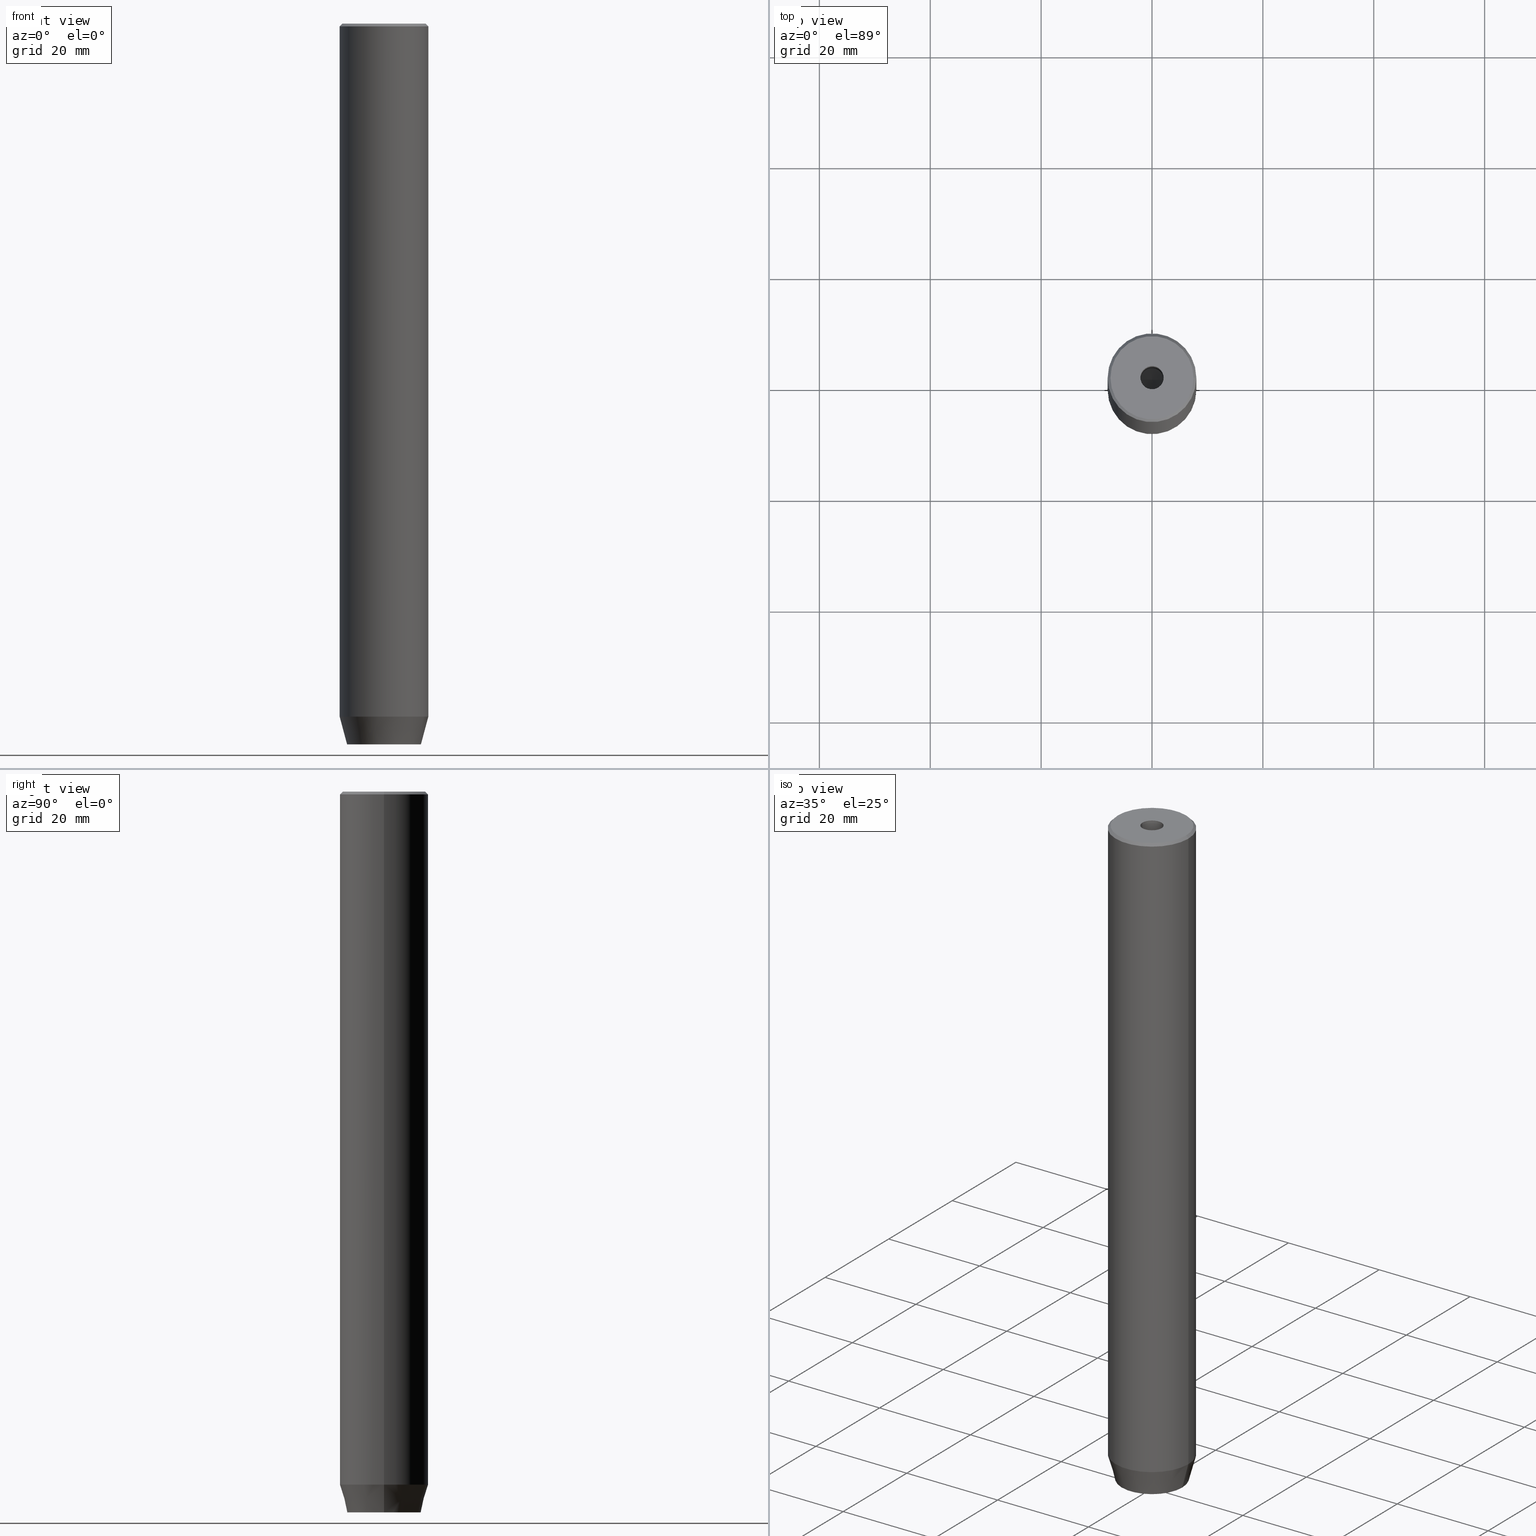
[diagram: canonical four-view strip — front | top / right | iso, engineering-drawing reading convention]
A machine part, canonical four-view strip (front | top / right | iso — engineering-drawing reading convention). The complete STEP part file that produces these views, byte-faithful:
ISO-10303-21;
HEADER;
FILE_DESCRIPTION (( 'STEP AP203' ),
    '1' );
FILE_NAME ('1d4f.STEP',
    '2024-01-02T20:39:26',
    ( '' ),
    ( '' ),
    'SwSTEP 2.0',
    'SolidWorks 2019',
    '' );
FILE_SCHEMA (( 'CONFIG_CONTROL_DESIGN' ));
ENDSEC;

DATA;
#1 = ORIENTED_EDGE ( 'NONE', *, *, #210, .F. ) ;
#2 = ORIENTED_EDGE ( 'NONE', *, *, #169, .F. ) ;
#3 = COORDINATED_UNIVERSAL_TIME_OFFSET ( 1, 0, .AHEAD. ) ;
#4 = CC_DESIGN_APPROVAL ( #158, ( #475 ) ) ;
#5 = CARTESIAN_POINT ( 'NONE',  ( 0.000000000000000000, 0.000000000000000000, -130.0000000000000000 ) ) ;
#6 = AXIS2_PLACEMENT_3D ( 'NONE', #211, #383, #39 ) ;
#7 = AXIS2_PLACEMENT_3D ( 'NONE', #332, #378, #202 ) ;
#8 = ORIENTED_EDGE ( 'NONE', *, *, #472, .T. ) ;
#9 = DESIGN_CONTEXT ( 'detailed design', #220, 'design' ) ;
#10 = ORIENTED_EDGE ( 'NONE', *, *, #172, .F. ) ;
#11 = CALENDAR_DATE ( 2024, 2, 1 ) ;
#12 = CARTESIAN_POINT ( 'NONE',  ( 3.000000000000000000, 0.000000000000000000, -127.2000000000000028 ) ) ;
#13 = EDGE_LOOP ( 'NONE', ( #498, #267, #369, #439 ) ) ;
#14 = CARTESIAN_POINT ( 'NONE',  ( -1.499999999999999556, 2.598076211353316012, -130.0000000000000000 ) ) ;
#15 = CARTESIAN_POINT ( 'NONE',  ( 0.000000000000000000, 0.000000000000000000, 0.000000000000000000 ) ) ;
#16 = SHAPE_DEFINITION_REPRESENTATION ( #347, #370 ) ;
#17 = DIRECTION ( 'NONE',  ( -0.000000000000000000, -0.000000000000000000, 1.000000000000000000 ) ) ;
#18 = VECTOR ( 'NONE', #236, 1000.000000000000000 ) ;
#19 = EDGE_LOOP ( 'NONE', ( #127, #45, #409 ) ) ;
#20 = CIRCLE ( 'NONE', #339, 2.099999999999996092 ) ;
#21 = AXIS2_PLACEMENT_3D ( 'NONE', #435, #300, #48 ) ;
#22 = EDGE_CURVE ( 'NONE', #157, #27, #283, .T. ) ;
#23 = ORIENTED_EDGE ( 'NONE', *, *, #342, .T. ) ;
#24 = LINE ( 'NONE', #380, #540 ) ;
#25 = CARTESIAN_POINT ( 'NONE',  ( 0.000000000000000000, 0.000000000000000000, -20.00000000000000000 ) ) ;
#26 = CARTESIAN_POINT ( 'NONE',  ( 3.000000000000000000, -1.732050807568876527, -127.2000000000000028 ) ) ;
#27 = VERTEX_POINT ( 'NONE', #161 ) ;
#28 = EDGE_CURVE ( 'NONE', #218, #371, #66, .T. ) ;
#29 = CARTESIAN_POINT ( 'NONE',  ( 7.500000000000007105, 9.491012693391991731E-16, 0.000000000000000000 ) ) ;
#30 = AXIS2_PLACEMENT_3D ( 'NONE', #413, #67, #320 ) ;
#31 = CONICAL_SURFACE ( 'NONE', #131, 8.000000000000000000, 0.2617993877991500740 ) ;
#32 =( LENGTH_UNIT ( ) NAMED_UNIT ( * ) SI_UNIT ( .MILLI., .METRE. ) );
#33 = CARTESIAN_POINT ( 'NONE',  ( 3.000000000000000000, 0.000000000000000000, -130.0000000000000000 ) ) ;
#34 = ORIENTED_EDGE ( 'NONE', *, *, #398, .F. ) ;
#35 = DIRECTION ( 'NONE',  ( 1.000000000000000000, 0.000000000000000000, 0.000000000000000000 ) ) ;
#36 = DIRECTION ( 'NONE',  ( 0.8660254037844385966, -0.5000000000000001110, 0.000000000000000000 ) ) ;
#37 = ADVANCED_FACE ( 'NONE', ( #412 ), #78, .T. ) ;
#38 = VECTOR ( 'NONE', #245, 1000.000000000000000 ) ;
#39 = DIRECTION ( 'NONE',  ( 1.000000000000000000, 0.000000000000000000, 0.000000000000000000 ) ) ;
#40 = CARTESIAN_POINT ( 'NONE',  ( -1.500000000000000666, -2.598076211353316456, -127.2000000000000028 ) ) ;
#41 = ORIENTED_EDGE ( 'NONE', *, *, #558, .F. ) ;
#42 = ADVANCED_FACE ( 'NONE', ( #504 ), #118, .F. ) ;
#43 = DIRECTION ( 'NONE',  ( 1.000000000000000000, 0.000000000000000000, 0.000000000000000000 ) ) ;
#44 = APPROVAL ( #586, 'NEUR�EN�' ) ;
#45 = ORIENTED_EDGE ( 'NONE', *, *, #22, .T. ) ;
#46 = COORDINATED_UNIVERSAL_TIME_OFFSET ( 1, 0, .AHEAD. ) ;
#47 = CIRCLE ( 'NONE', #424, 8.000000000000000000 ) ;
#48 = DIRECTION ( 'NONE',  ( -1.000000000000000000, 0.000000000000000000, 0.000000000000000000 ) ) ;
#49 = EDGE_CURVE ( 'NONE', #585, #64, #516, .T. ) ;
#50 = ORIENTED_EDGE ( 'NONE', *, *, #478, .F. ) ;
#51 = EDGE_LOOP ( 'NONE', ( #451, #583, #162, #357 ) ) ;
#52 = DIRECTION ( 'NONE',  ( 0.7071067811865474617, 8.659560562354932858E-17, -0.7071067811865474617 ) ) ;
#53 = EDGE_LOOP ( 'NONE', ( #496, #111, #115, #216 ) ) ;
#54 = ORIENTED_EDGE ( 'NONE', *, *, #49, .F. ) ;
#55 = DATE_TIME_ROLE ( 'creation_date' ) ;
#56 = DIRECTION ( 'NONE',  ( -0.000000000000000000, -0.000000000000000000, 1.000000000000000000 ) ) ;
#57 = LINE ( 'NONE', #505, #552 ) ;
#58 = VERTEX_POINT ( 'NONE', #414 ) ;
#59 = PERSON_AND_ORGANIZATION_ROLE ( 'classification_officer' ) ;
#60 = APPROVAL_PERSON_ORGANIZATION ( #499, #44, #153 ) ;
#61 = CARTESIAN_POINT ( 'NONE',  ( 3.000000000000000000, -1.732050807568876527, -130.0000000000000000 ) ) ;
#62 = VECTOR ( 'NONE', #518, 1000.000000000000000 ) ;
#63 = VERTEX_POINT ( 'NONE', #501 ) ;
#64 = VERTEX_POINT ( 'NONE', #200 ) ;
#65 = FACE_OUTER_BOUND ( 'NONE', #581, .T. ) ;
#66 = LINE ( 'NONE', #231, #488 ) ;
#67 = DIRECTION ( 'NONE',  ( -1.000000000000000000, -2.503857664561933362E-16, 0.000000000000000000 ) ) ;
#68 = EDGE_CURVE ( 'NONE', #27, #63, #20, .T. ) ;
#69 = VERTEX_POINT ( 'NONE', #446 ) ;
#70 = LINE ( 'NONE', #26, #38 ) ;
#71 = EDGE_LOOP ( 'NONE', ( #50, #93, #119, #156 ) ) ;
#72 = FACE_OUTER_BOUND ( 'NONE', #335, .T. ) ;
#73 = FACE_OUTER_BOUND ( 'NONE', #394, .T. ) ;
#74 = CARTESIAN_POINT ( 'NONE',  ( -1.499999999999999556, 2.598076211353316012, -127.2000000000000028 ) ) ;
#75 = LINE ( 'NONE', #508, #500 ) ;
#76 = FACE_BOUND ( 'NONE', #238, .T. ) ;
#77 = LOCAL_TIME ( 21, 39, 26.00000000000000000, #396 ) ;
#78 = CONICAL_SURFACE ( 'NONE', #130, 7.500000000000007105, 0.7853981633974482790 ) ;
#79 = VECTOR ( 'NONE', #433, 1000.000000000000000 ) ;
#80 = ORIENTED_EDGE ( 'NONE', *, *, #105, .T. ) ;
#81 = CARTESIAN_POINT ( 'NONE',  ( 0.000000000000000000, 0.000000000000000000, 0.000000000000000000 ) ) ;
#82 = APPROVAL_DATE_TIME ( #294, #456 ) ;
#83 = CARTESIAN_POINT ( 'NONE',  ( 1.500000000000000222, -2.598076211353315568, -127.2000000000000028 ) ) ;
#84 = EDGE_CURVE ( 'NONE', #537, #353, #226, .T. ) ;
#85 = DIRECTION ( 'NONE',  ( 0.000000000000000000, 0.000000000000000000, -1.000000000000000000 ) ) ;
#86 = ADVANCED_FACE ( 'NONE', ( #282 ), #31, .T. ) ;
#87 = VECTOR ( 'NONE', #270, 999.9999999999998863 ) ;
#88 = VECTOR ( 'NONE', #17, 1000.000000000000000 ) ;
#89 = VECTOR ( 'NONE', #497, 1000.000000000000000 ) ;
#90 = DIRECTION ( 'NONE',  ( -0.8660254037844385966, 0.5000000000000001110, 0.000000000000000000 ) ) ;
#91 = CARTESIAN_POINT ( 'NONE',  ( 0.000000000000000000, 0.000000000000000000, -127.2000000000000028 ) ) ;
#92 = ORIENTED_EDGE ( 'NONE', *, *, #564, .T. ) ;
#93 = ORIENTED_EDGE ( 'NONE', *, *, #494, .T. ) ;
#94 = EDGE_CURVE ( 'NONE', #467, #173, #57, .T. ) ;
#95 = APPLICATION_PROTOCOL_DEFINITION ( 'international standard', 'config_control_design', 1994, #220 ) ;
#96 = DIRECTION ( 'NONE',  ( 1.000000000000000000, 0.000000000000000000, 0.000000000000000000 ) ) ;
#97 = EDGE_LOOP ( 'NONE', ( #531, #315, #528, #356 ) ) ;
#98 = CONICAL_SURFACE ( 'NONE', #299, 2.099999999999996092, 1.029744258676652091 ) ;
#99 = VECTOR ( 'NONE', #296, 1000.000000000000000 ) ;
#100 = FACE_OUTER_BOUND ( 'NONE', #515, .T. ) ;
#101 = ORIENTED_EDGE ( 'NONE', *, *, #469, .F. ) ;
#102 = DATE_AND_TIME ( #492, #523 ) ;
#103 = DIRECTION ( 'NONE',  ( 1.000000000000000000, 0.000000000000000000, 0.000000000000000000 ) ) ;
#104 = DIRECTION ( 'NONE',  ( 1.000000000000000000, 0.000000000000000000, 0.000000000000000000 ) ) ;
#105 = EDGE_CURVE ( 'NONE', #480, #152, #47, .T. ) ;
#106 = ORIENTED_EDGE ( 'NONE', *, *, #556, .F. ) ;
#107 = PERSON_AND_ORGANIZATION ( #253, #405 ) ;
#108 = PLANE ( 'NONE',  #538 ) ;
#109 = ORIENTED_EDGE ( 'NONE', *, *, #329, .F. ) ;
#110 = ADVANCED_FACE ( 'NONE', ( #361 ), #541, .F. ) ;
#111 = ORIENTED_EDGE ( 'NONE', *, *, #556, .T. ) ;
#112 = CC_DESIGN_PERSON_AND_ORGANIZATION_ASSIGNMENT ( #343, #519, ( #141 ) ) ;
#113 = CARTESIAN_POINT ( 'NONE',  ( 1.500000000000000222, -2.598076211353315568, -127.2000000000000028 ) ) ;
#114 = AXIS2_PLACEMENT_3D ( 'NONE', #420, #513, #506 ) ;
#115 = ORIENTED_EDGE ( 'NONE', *, *, #452, .F. ) ;
#116 = EDGE_CURVE ( 'NONE', #179, #484, #321, .T. ) ;
#117 = DIRECTION ( 'NONE',  ( -0.000000000000000000, -0.000000000000000000, 1.000000000000000000 ) ) ;
#118 = CYLINDRICAL_SURFACE ( 'NONE', #389, 2.099999999999997424 ) ;
#119 = ORIENTED_EDGE ( 'NONE', *, *, #558, .T. ) ;
#120 = DIRECTION ( 'NONE',  ( -0.000000000000000000, -0.000000000000000000, 1.000000000000000000 ) ) ;
#121 = CC_DESIGN_APPROVAL ( #456, ( #141 ) ) ;
#122 = CARTESIAN_POINT ( 'NONE',  ( -1.499999999999999556, 2.598076211353316012, -127.2000000000000028 ) ) ;
#123 = AXIS2_PLACEMENT_3D ( 'NONE', #91, #520, #573 ) ;
#124 = CARTESIAN_POINT ( 'NONE',  ( 2.099999999999998757, 0.000000000000000000, -1.990051048614449116E-16 ) ) ;
#125 = CARTESIAN_POINT ( 'NONE',  ( 8.000000000000000000, 0.000000000000000000, 0.000000000000000000 ) ) ;
#126 = LINE ( 'NONE', #242, #263 ) ;
#127 = ORIENTED_EDGE ( 'NONE', *, *, #278, .F. ) ;
#128 = PLANE ( 'NONE',  #255 ) ;
#129 = LOCAL_TIME ( 21, 39, 26.00000000000000000, #3 ) ;
#130 = AXIS2_PLACEMENT_3D ( 'NONE', #495, #548, #449 ) ;
#131 = AXIS2_PLACEMENT_3D ( 'NONE', #271, #194, #454 ) ;
#132 = CARTESIAN_POINT ( 'NONE',  ( 3.000000000000000000, -1.732050807568876527, -127.2000000000000028 ) ) ;
#133 = CARTESIAN_POINT ( 'NONE',  ( 0.000000000000000000, 0.000000000000000000, 0.000000000000000000 ) ) ;
#134 = FACE_OUTER_BOUND ( 'NONE', #268, .T. ) ;
#135 = APPROVAL_PERSON_ORGANIZATION ( #437, #456, #569 ) ;
#136 = ADVANCED_FACE ( 'NONE', ( #76, #425 ), #171, .T. ) ;
#137 = VECTOR ( 'NONE', #474, 1000.000000000000000 ) ;
#138 = MANIFOLD_SOLID_BREP ( 'Vrt�k z�vitn�ku pro M5 z�vit1', #524 ) ;
#139 = DIRECTION ( 'NONE',  ( -0.000000000000000000, -0.000000000000000000, 1.000000000000000000 ) ) ;
#140 = ORIENTED_EDGE ( 'NONE', *, *, #398, .T. ) ;
#141 = PRODUCT_DEFINITION ( 'NEZN�M�', '', #475, #9 ) ;
#142 = ORIENTED_EDGE ( 'NONE', *, *, #68, .F. ) ;
#143 = CARTESIAN_POINT ( 'NONE',  ( -1.500000000000000666, -2.598076211353316456, -130.0000000000000000 ) ) ;
#144 = ORIENTED_EDGE ( 'NONE', *, *, #28, .F. ) ;
#145 = ORIENTED_EDGE ( 'NONE', *, *, #305, .T. ) ;
#146 = APPROVAL_STATUS ( 'not_yet_approved' ) ;
#147 = LINE ( 'NONE', #312, #18 ) ;
#148 = ORIENTED_EDGE ( 'NONE', *, *, #584, .T. ) ;
#149 = ORIENTED_EDGE ( 'NONE', *, *, #227, .T. ) ;
#150 = CARTESIAN_POINT ( 'NONE',  ( 0.000000000000000000, 6.660254037844381969, -130.0000000000000000 ) ) ;
#151 = ORIENTED_EDGE ( 'NONE', *, *, #116, .F. ) ;
#152 = VERTEX_POINT ( 'NONE', #555 ) ;
#153 = APPROVAL_ROLE ( '' ) ;
#154 = CARTESIAN_POINT ( 'NONE',  ( -2.168404344971008868E-16, -3.464101615137754830, -127.2000000000000028 ) ) ;
#155 = DIRECTION ( 'NONE',  ( -0.8660254037844385966, 0.5000000000000001110, 0.000000000000000000 ) ) ;
#156 = ORIENTED_EDGE ( 'NONE', *, *, #553, .F. ) ;
#157 = VERTEX_POINT ( 'NONE', #333 ) ;
#158 = APPROVAL ( #146, 'NEUR�EN�' ) ;
#159 = LINE ( 'NONE', #225, #89 ) ;
#160 = VECTOR ( 'NONE', #36, 1000.000000000000000 ) ;
#161 = CARTESIAN_POINT ( 'NONE',  ( 2.099999999999996092, 0.000000000000000000, -20.00000000000000000 ) ) ;
#162 = ORIENTED_EDGE ( 'NONE', *, *, #316, .F. ) ;
#163 = LINE ( 'NONE', #122, #301 ) ;
#164 = CC_DESIGN_PERSON_AND_ORGANIZATION_ASSIGNMENT ( #274, #311, ( #475 ) ) ;
#165 = AXIS2_PLACEMENT_3D ( 'NONE', #150, #441, #323 ) ;
#166 = DIRECTION ( 'NONE',  ( 1.000000000000000000, 0.000000000000000000, 0.000000000000000000 ) ) ;
#167 = CARTESIAN_POINT ( 'NONE',  ( 3.000000000000000000, 1.732050807568876527, -130.0000000000000000 ) ) ;
#168 = APPROVAL_PERSON_ORGANIZATION ( #534, #158, #265 ) ;
#169 = EDGE_CURVE ( 'NONE', #243, #371, #24, .T. ) ;
#170 = DIRECTION ( 'NONE',  ( -0.000000000000000000, -0.000000000000000000, 1.000000000000000000 ) ) ;
#171 = PLANE ( 'NONE',  #7 ) ;
#172 = EDGE_CURVE ( 'NONE', #322, #243, #340, .T. ) ;
#173 = VERTEX_POINT ( 'NONE', #209 ) ;
#174 = COORDINATED_UNIVERSAL_TIME_OFFSET ( 1, 0, .AHEAD. ) ;
#175 = DIRECTION ( 'NONE',  ( -0.000000000000000000, -0.000000000000000000, -1.000000000000000000 ) ) ;
#176 = CARTESIAN_POINT ( 'NONE',  ( 0.000000000000000000, 0.000000000000000000, 0.000000000000000000 ) ) ;
#177 = DIRECTION ( 'NONE',  ( -0.000000000000000000, -0.000000000000000000, 1.000000000000000000 ) ) ;
#178 = PLANE ( 'NONE',  #468 ) ;
#179 = VERTEX_POINT ( 'NONE', #167 ) ;
#180 = AXIS2_PLACEMENT_3D ( 'NONE', #74, #470, #284 ) ;
#181 = LINE ( 'NONE', #348, #254 ) ;
#182 = ADVANCED_FACE ( 'NONE', ( #566 ), #128, .F. ) ;
#183 = CARTESIAN_POINT ( 'NONE',  ( -8.000000000000000000, 9.797174393178825657E-16, -125.0000000000000000 ) ) ;
#184 = VERTEX_POINT ( 'NONE', #207 ) ;
#185 = PERSON_AND_ORGANIZATION_ROLE ( 'design_supplier' ) ;
#186 = DIRECTION ( 'NONE',  ( 1.000000000000000000, 0.000000000000000000, 0.000000000000000000 ) ) ;
#187 = LOCAL_TIME ( 21, 39, 26.00000000000000000, #174 ) ;
#188 = UNCERTAINTY_MEASURE_WITH_UNIT (LENGTH_MEASURE( 1.000000000000000082E-05 ), #32, 'distance_accuracy_value', 'NONE');
#189 = ORIENTED_EDGE ( 'NONE', *, *, #564, .F. ) ;
#190 = CALENDAR_DATE ( 2024, 2, 1 ) ;
#191 = LINE ( 'NONE', #14, #87 ) ;
#192 = DIRECTION ( 'NONE',  ( -0.000000000000000000, -0.000000000000000000, 1.000000000000000000 ) ) ;
#193 = DIRECTION ( 'NONE',  ( 1.000000000000000000, 0.000000000000000000, 0.000000000000000000 ) ) ;
#194 = DIRECTION ( 'NONE',  ( -0.000000000000000000, -0.000000000000000000, 1.000000000000000000 ) ) ;
#195 = CARTESIAN_POINT ( 'NONE',  ( -1.084202172485504434E-16, 3.464101615137754830, -127.2000000000000028 ) ) ;
#196 = DIRECTION ( 'NONE',  ( -0.000000000000000000, -0.000000000000000000, -1.000000000000000000 ) ) ;
#197 = EDGE_CURVE ( 'NONE', #322, #218, #570, .T. ) ;
#198 = DIRECTION ( 'NONE',  ( 0.000000000000000000, 0.000000000000000000, -1.000000000000000000 ) ) ;
#199 = VECTOR ( 'NONE', #421, 1000.000000000000000 ) ;
#200 = CARTESIAN_POINT ( 'NONE',  ( -2.099999999999998757, 2.571758278209440478E-16, -1.990051048614449116E-16 ) ) ;
#201 = DIRECTION ( 'NONE',  ( 0.000000000000000000, -1.000000000000000000, 0.000000000000000000 ) ) ;
#202 = DIRECTION ( 'NONE',  ( 1.000000000000000000, 0.000000000000000000, 0.000000000000000000 ) ) ;
#203 = ADVANCED_FACE ( 'NONE', ( #563 ), #234, .T. ) ;
#204 = ADVANCED_FACE ( 'NONE', ( #463 ), #248, .F. ) ;
#205 = DIRECTION ( 'NONE',  ( -0.7071067811865474617, 0.000000000000000000, -0.7071067811865474617 ) ) ;
#206 = CIRCLE ( 'NONE', #525, 8.000000000000000000 ) ;
#207 = CARTESIAN_POINT ( 'NONE',  ( 8.000000000000000000, 0.000000000000000000, -0.4999999999999935052 ) ) ;
#208 =( NAMED_UNIT ( * ) PLANE_ANGLE_UNIT ( ) SI_UNIT ( $, .RADIAN. ) );
#209 = CARTESIAN_POINT ( 'NONE',  ( -2.168404344971008868E-16, -3.464101615137754830, -130.0000000000000000 ) ) ;
#210 = EDGE_CURVE ( 'NONE', #395, #264, #502, .T. ) ;
#211 = CARTESIAN_POINT ( 'NONE',  ( 0.000000000000000000, 0.000000000000000000, 0.000000000000000000 ) ) ;
#212 = ADVANCED_FACE ( 'NONE', ( #459 ), #285, .F. ) ;
#213 = DIRECTION ( 'NONE',  ( 1.000000000000000000, 0.000000000000000000, 0.000000000000000000 ) ) ;
#214 = DIRECTION ( 'NONE',  ( 1.000000000000000000, 0.000000000000000000, 0.000000000000000000 ) ) ;
#215 = DIRECTION ( 'NONE',  ( -0.5000000000000001110, -0.8660254037844385966, 0.000000000000000000 ) ) ;
#216 = ORIENTED_EDGE ( 'NONE', *, *, #272, .F. ) ;
#217 = CARTESIAN_POINT ( 'NONE',  ( 1.500000000000000222, 2.598076211353315568, -127.2000000000000028 ) ) ;
#218 = VERTEX_POINT ( 'NONE', #382 ) ;
#219 = ORIENTED_EDGE ( 'NONE', *, *, #452, .T. ) ;
#220 = APPLICATION_CONTEXT ( 'configuration controlled 3d designs of mechanical parts and assemblies' ) ;
#221 = DIRECTION ( 'NONE',  ( -0.000000000000000000, -0.000000000000000000, -1.000000000000000000 ) ) ;
#222 = EDGE_LOOP ( 'NONE', ( #80, #366, #219, #352 ) ) ;
#223 = EDGE_LOOP ( 'NONE', ( #106, #1, #444, #101 ) ) ;
#224 = PERSON_AND_ORGANIZATION ( #253, #405 ) ;
#225 = CARTESIAN_POINT ( 'NONE',  ( -1.084202172485504434E-16, 3.464101615137754830, -127.2000000000000028 ) ) ;
#226 = LINE ( 'NONE', #12, #415 ) ;
#227 = EDGE_CURVE ( 'NONE', #353, #484, #70, .T. ) ;
#228 = ORIENTED_EDGE ( 'NONE', *, *, #172, .T. ) ;
#229 = CALENDAR_DATE ( 2024, 2, 1 ) ;
#230 = CARTESIAN_POINT ( 'NONE',  ( 7.500000000000007105, 9.184850993605157805E-16, 0.000000000000000000 ) ) ;
#231 = CARTESIAN_POINT ( 'NONE',  ( -3.000000000000000444, -7.511572993685800087E-16, -130.0000000000000000 ) ) ;
#232 = SECURITY_CLASSIFICATION ( '', '', #358 ) ;
#233 = EDGE_LOOP ( 'NONE', ( #471, #565 ) ) ;
#234 = CONICAL_SURFACE ( 'NONE', #114, 8.000000000000000000, 0.2617993877991500740 ) ;
#235 = CIRCLE ( 'NONE', #325, 6.660254037844381969 ) ;
#236 = DIRECTION ( 'NONE',  ( -0.000000000000000000, -0.000000000000000000, 1.000000000000000000 ) ) ;
#237 = ORIENTED_EDGE ( 'NONE', *, *, #462, .F. ) ;
#238 = EDGE_LOOP ( 'NONE', ( #54, #41 ) ) ;
#239 = CARTESIAN_POINT ( 'NONE',  ( 3.000000000000000000, 1.732050807568876527, -127.2000000000000028 ) ) ;
#240 = ORIENTED_EDGE ( 'NONE', *, *, #478, .T. ) ;
#241 = DIRECTION ( 'NONE',  ( -0.000000000000000000, -0.000000000000000000, 1.000000000000000000 ) ) ;
#242 = CARTESIAN_POINT ( 'NONE',  ( -7.500000000000007105, 0.000000000000000000, 0.000000000000000000 ) ) ;
#243 = VERTEX_POINT ( 'NONE', #510 ) ;
#244 = PLANE ( 'NONE',  #123 ) ;
#245 = DIRECTION ( 'NONE',  ( -0.000000000000000000, -0.000000000000000000, -1.000000000000000000 ) ) ;
#246 = EDGE_CURVE ( 'NONE', #480, #184, #559, .T. ) ;
#247 = DIRECTION ( 'NONE',  ( -0.8660254037844385966, -0.5000000000000001110, 0.000000000000000000 ) ) ;
#248 = PLANE ( 'NONE',  #180 ) ;
#249 = CC_DESIGN_DATE_AND_TIME_ASSIGNMENT ( #354, #55, ( #141 ) ) ;
#250 = CARTESIAN_POINT ( 'NONE',  ( 0.000000000000000000, 0.000000000000000000, -20.00000000000000000 ) ) ;
#251 = FACE_OUTER_BOUND ( 'NONE', #71, .T. ) ;
#252 = LINE ( 'NONE', #430, #88 ) ;
#253 = PERSON ( 'NEUR�EN�', 'NEUR�EN�', 'NEUR�EN�', ('NEUR�EN�'), ('NEUR�EN�'), ('NEUR�EN�') ) ;
#254 = VECTOR ( 'NONE', #260, 1000.000000000000000 ) ;
#255 = AXIS2_PLACEMENT_3D ( 'NONE', #293, #288, #331 ) ;
#256 = FACE_OUTER_BOUND ( 'NONE', #53, .T. ) ;
#257 = LINE ( 'NONE', #183, #79 ) ;
#258 = ORIENTED_EDGE ( 'NONE', *, *, #278, .T. ) ;
#259 = ORIENTED_EDGE ( 'NONE', *, *, #22, .F. ) ;
#260 = DIRECTION ( 'NONE',  ( 0.8660254037844385966, -0.5000000000000001110, 0.000000000000000000 ) ) ;
#261 = VECTOR ( 'NONE', #52, 1000.000000000000114 ) ;
#262 = AXIS2_PLACEMENT_3D ( 'NONE', #408, #241, #330 ) ;
#263 = VECTOR ( 'NONE', #205, 1000.000000000000114 ) ;
#264 = VERTEX_POINT ( 'NONE', #29 ) ;
#265 = APPROVAL_ROLE ( '' ) ;
#266 = CARTESIAN_POINT ( 'NONE',  ( 0.000000000000000000, 0.000000000000000000, -1.990051048614449116E-16 ) ) ;
#267 = ORIENTED_EDGE ( 'NONE', *, *, #227, .F. ) ;
#268 = EDGE_LOOP ( 'NONE', ( #237, #436, #447, #568 ) ) ;
#269 = APPROVAL_DATE_TIME ( #102, #158 ) ;
#270 = DIRECTION ( 'NONE',  ( 0.8660254037844387076, 0.4999999999999999445, 0.000000000000000000 ) ) ;
#271 = CARTESIAN_POINT ( 'NONE',  ( 0.000000000000000000, 0.000000000000000000, -125.0000000000000000 ) ) ;
#272 = EDGE_CURVE ( 'NONE', #395, #58, #126, .T. ) ;
#273 = ORIENTED_EDGE ( 'NONE', *, *, #584, .F. ) ;
#274 = PERSON_AND_ORGANIZATION ( #253, #405 ) ;
#275 = DIRECTION ( 'NONE',  ( 1.000000000000000000, 0.000000000000000000, 0.000000000000000000 ) ) ;
#276 = CARTESIAN_POINT ( 'NONE',  ( 2.099999999999996092, 0.000000000000000000, -20.00000000000000000 ) ) ;
#277 = VECTOR ( 'NONE', #117, 1000.000000000000000 ) ;
#278 = EDGE_CURVE ( 'NONE', #157, #63, #290, .T. ) ;
#279 = EDGE_LOOP ( 'NONE', ( #189, #144, #109, #273, #151, #34 ) ) ;
#280 = CIRCLE ( 'NONE', #349, 8.000000000000000000 ) ;
#281 = CARTESIAN_POINT ( 'NONE',  ( 8.000000000000000000, 0.000000000000000000, -125.0000000000000000 ) ) ;
#282 = FACE_OUTER_BOUND ( 'NONE', #97, .T. ) ;
#283 = LINE ( 'NONE', #276, #551 ) ;
#284 = DIRECTION ( 'NONE',  ( -0.8660254037844387076, -0.4999999999999999445, 0.000000000000000000 ) ) ;
#285 = CONICAL_SURFACE ( 'NONE', #326, 2.099999999999996092, 1.029744258676652091 ) ;
#286 = DIRECTION ( 'NONE',  ( 0.8660254037844387076, 0.4999999999999999445, 0.000000000000000000 ) ) ;
#287 = EDGE_CURVE ( 'NONE', #243, #579, #163, .T. ) ;
#288 = DIRECTION ( 'NONE',  ( 1.000000000000000000, 0.000000000000000000, -0.000000000000000000 ) ) ;
#289 = VERTEX_POINT ( 'NONE', #461 ) ;
#290 = LINE ( 'NONE', #417, #561 ) ;
#291 = ORIENTED_EDGE ( 'NONE', *, *, #197, .T. ) ;
#292 = ADVANCED_FACE ( 'NONE', ( #73 ), #244, .T. ) ;
#293 = CARTESIAN_POINT ( 'NONE',  ( 3.000000000000000000, 0.000000000000000000, -127.2000000000000028 ) ) ;
#294 = DATE_AND_TIME ( #338, #187 ) ;
#295 = ADVANCED_FACE ( 'NONE', ( #134 ), #388, .T. ) ;
#296 = DIRECTION ( 'NONE',  ( -0.8660254037844385966, 0.5000000000000001110, 0.000000000000000000 ) ) ;
#297 = CARTESIAN_POINT ( 'NONE',  ( -3.000000000000000000, -1.732050807568877859, -127.2000000000000028 ) ) ;
#298 = ADVANCED_FACE ( 'NONE', ( #256 ), #571, .T. ) ;
#299 = AXIS2_PLACEMENT_3D ( 'NONE', #25, #557, #166 ) ;
#300 = DIRECTION ( 'NONE',  ( 0.000000000000000000, 0.000000000000000000, -1.000000000000000000 ) ) ;
#301 = VECTOR ( 'NONE', #286, 999.9999999999998863 ) ;
#302 = CIRCLE ( 'NONE', #560, 2.099999999999996092 ) ;
#303 = EDGE_CURVE ( 'NONE', #69, #313, #517, .T. ) ;
#304 = FACE_OUTER_BOUND ( 'NONE', #222, .T. ) ;
#305 = EDGE_CURVE ( 'NONE', #579, #537, #574, .T. ) ;
#306 = PERSON_AND_ORGANIZATION ( #253, #405 ) ;
#307 = DIRECTION ( 'NONE',  ( 0.8660254037844385966, -0.5000000000000001110, 0.000000000000000000 ) ) ;
#308 = ORIENTED_EDGE ( 'NONE', *, *, #511, .T. ) ;
#309 = ORIENTED_EDGE ( 'NONE', *, *, #494, .F. ) ;
#310 = EDGE_CURVE ( 'NONE', #537, #179, #355, .T. ) ;
#311 = PERSON_AND_ORGANIZATION_ROLE ( 'creator' ) ;
#312 = CARTESIAN_POINT ( 'NONE',  ( 2.099999999999997424, 0.000000000000000000, 0.000000000000000000 ) ) ;
#313 = VERTEX_POINT ( 'NONE', #582 ) ;
#314 = CIRCLE ( 'NONE', #431, 7.500000000000007105 ) ;
#315 = ORIENTED_EDGE ( 'NONE', *, *, #303, .T. ) ;
#316 = EDGE_CURVE ( 'NONE', #467, #322, #393, .T. ) ;
#317 = EDGE_LOOP ( 'NONE', ( #308, #23, #536, #392 ) ) ;
#318 = CC_DESIGN_DATE_AND_TIME_ASSIGNMENT ( #410, #400, ( #232 ) ) ;
#319 = ORIENTED_EDGE ( 'NONE', *, *, #287, .T. ) ;
#320 = DIRECTION ( 'NONE',  ( 2.503857664561933362E-16, -1.000000000000000000, 0.000000000000000000 ) ) ;
#321 = LINE ( 'NONE', #33, #390 ) ;
#322 = VERTEX_POINT ( 'NONE', #297 ) ;
#323 = DIRECTION ( 'NONE',  ( -1.000000000000000000, 0.000000000000000000, -0.000000000000000000 ) ) ;
#324 = DIRECTION ( 'NONE',  ( 1.000000000000000000, 0.000000000000000000, 0.000000000000000000 ) ) ;
#325 = AXIS2_PLACEMENT_3D ( 'NONE', #5, #56, #103 ) ;
#326 = AXIS2_PLACEMENT_3D ( 'NONE', #250, #426, #35 ) ;
#327 = DIRECTION ( 'NONE',  ( -0.000000000000000000, -0.000000000000000000, 1.000000000000000000 ) ) ;
#328 = CARTESIAN_POINT ( 'NONE',  ( 0.000000000000000000, 0.000000000000000000, -20.00000000000000000 ) ) ;
#329 = EDGE_CURVE ( 'NONE', #173, #218, #344, .T. ) ;
#330 = DIRECTION ( 'NONE',  ( 1.000000000000000000, 0.000000000000000000, 0.000000000000000000 ) ) ;
#331 = DIRECTION ( 'NONE',  ( -0.000000000000000000, 0.000000000000000000, -1.000000000000000000 ) ) ;
#332 = CARTESIAN_POINT ( 'NONE',  ( 0.000000000000000000, 0.000000000000000000, 0.000000000000000000 ) ) ;
#333 = CARTESIAN_POINT ( 'NONE',  ( -5.207640850796248781E-15, 0.000000000000000000, -21.26180729995787999 ) ) ;
#334 = CC_DESIGN_PERSON_AND_ORGANIZATION_ASSIGNMENT ( #306, #481, ( #422 ) ) ;
#335 = EDGE_LOOP ( 'NONE', ( #259, #258, #240 ) ) ;
#336 = CARTESIAN_POINT ( 'NONE',  ( -3.000000000000000444, -7.511572993685800087E-16, -127.2000000000000028 ) ) ;
#337 = ORIENTED_EDGE ( 'NONE', *, *, #472, .F. ) ;
#338 = CALENDAR_DATE ( 2024, 2, 1 ) ;
#339 = AXIS2_PLACEMENT_3D ( 'NONE', #328, #192, #104 ) ;
#340 = LINE ( 'NONE', #336, #62 ) ;
#341 = VECTOR ( 'NONE', #221, 1000.000000000000000 ) ;
#342 = EDGE_CURVE ( 'NONE', #69, #152, #257, .T. ) ;
#343 = PERSON_AND_ORGANIZATION ( #253, #405 ) ;
#344 = LINE ( 'NONE', #143, #489 ) ;
#345 = CARTESIAN_POINT ( 'NONE',  ( 0.000000000000000000, 0.000000000000000000, -130.0000000000000000 ) ) ;
#346 = CARTESIAN_POINT ( 'NONE',  ( 0.000000000000000000, 0.000000000000000000, 0.000000000000000000 ) ) ;
#347 = PRODUCT_DEFINITION_SHAPE ( 'NONE', 'NONE',  #141 ) ;
#348 = CARTESIAN_POINT ( 'NONE',  ( 1.500000000000000222, 2.598076211353315568, -130.0000000000000000 ) ) ;
#349 = AXIS2_PLACEMENT_3D ( 'NONE', #547, #198, #549 ) ;
#350 = ORIENTED_EDGE ( 'NONE', *, *, #303, .F. ) ;
#351 = CYLINDRICAL_SURFACE ( 'NONE', #362, 8.000000000000000000 ) ;
#352 = ORIENTED_EDGE ( 'NONE', *, *, #246, .F. ) ;
#353 = VERTEX_POINT ( 'NONE', #132 ) ;
#354 = DATE_AND_TIME ( #11, #360 ) ;
#355 = LINE ( 'NONE', #477, #341 ) ;
#356 = ORIENTED_EDGE ( 'NONE', *, *, #465, .F. ) ;
#357 = ORIENTED_EDGE ( 'NONE', *, *, #94, .T. ) ;
#358 = SECURITY_CLASSIFICATION_LEVEL ( 'unclassified' ) ;
#359 = DIRECTION ( 'NONE',  ( -0.000000000000000000, -0.000000000000000000, 1.000000000000000000 ) ) ;
#360 = LOCAL_TIME ( 21, 39, 26.00000000000000000, #46 ) ;
#361 = FACE_OUTER_BOUND ( 'NONE', #406, .T. ) ;
#362 = AXIS2_PLACEMENT_3D ( 'NONE', #133, #526, #96 ) ;
#363 = DATE_AND_TIME ( #190, #129 ) ;
#364 = FACE_BOUND ( 'NONE', #279, .T. ) ;
#365 = CARTESIAN_POINT ( 'NONE',  ( 0.000000000000000000, 0.000000000000000000, -125.0000000000000000 ) ) ;
#366 = ORIENTED_EDGE ( 'NONE', *, *, #462, .T. ) ;
#367 = PLANE ( 'NONE',  #165 ) ;
#368 = DIRECTION ( 'NONE',  ( -2.503857664561932376E-16, 1.000000000000000000, 0.000000000000000000 ) ) ;
#369 = ORIENTED_EDGE ( 'NONE', *, *, #84, .F. ) ;
#370 = ADVANCED_BREP_SHAPE_REPRESENTATION ( '1d4f', ( #138, #376 ), #423 ) ;
#371 = VERTEX_POINT ( 'NONE', #473 ) ;
#372 = CARTESIAN_POINT ( 'NONE',  ( -3.000000000000000000, -1.732050807568877859, -127.2000000000000028 ) ) ;
#373 = DIRECTION ( 'NONE',  ( -0.000000000000000000, -0.000000000000000000, -1.000000000000000000 ) ) ;
#374 = CC_DESIGN_SECURITY_CLASSIFICATION ( #232, ( #475 ) ) ;
#375 = AXIS2_PLACEMENT_3D ( 'NONE', #345, #522, #43 ) ;
#376 = AXIS2_PLACEMENT_3D ( 'NONE', #346, #429, #213 ) ;
#377 = ADVANCED_FACE ( 'NONE', ( #578 ), #178, .F. ) ;
#378 = DIRECTION ( 'NONE',  ( 0.000000000000000000, -0.000000000000000000, 1.000000000000000000 ) ) ;
#379 = ORIENTED_EDGE ( 'NONE', *, *, #84, .T. ) ;
#380 = CARTESIAN_POINT ( 'NONE',  ( -3.000000000000000888, 1.732050807568876527, -127.2000000000000028 ) ) ;
#381 = APPROVAL_STATUS ( 'not_yet_approved' ) ;
#382 = CARTESIAN_POINT ( 'NONE',  ( -3.000000000000000000, -1.732050807568877859, -130.0000000000000000 ) ) ;
#383 = DIRECTION ( 'NONE',  ( -0.000000000000000000, -0.000000000000000000, 1.000000000000000000 ) ) ;
#384 = DIRECTION ( 'NONE',  ( 1.000000000000000000, 0.000000000000000000, 0.000000000000000000 ) ) ;
#385 = APPLICATION_PROTOCOL_DEFINITION ( 'international standard', 'config_control_design', 1994, #418 ) ;
#386 = CARTESIAN_POINT ( 'NONE',  ( 0.000000000000000000, 0.000000000000000000, 0.000000000000000000 ) ) ;
#387 = ORIENTED_EDGE ( 'NONE', *, *, #49, .T. ) ;
#388 = CYLINDRICAL_SURFACE ( 'NONE', #476, 8.000000000000000000 ) ;
#389 = AXIS2_PLACEMENT_3D ( 'NONE', #15, #120, #324 ) ;
#390 = VECTOR ( 'NONE', #201, 1000.000000000000000 ) ;
#391 = EDGE_LOOP ( 'NONE', ( #309, #142, #491, #387 ) ) ;
#392 = ORIENTED_EDGE ( 'NONE', *, *, #575, .F. ) ;
#393 = LINE ( 'NONE', #530, #99 ) ;
#394 = EDGE_LOOP ( 'NONE', ( #319, #145, #379, #464, #442, #228 ) ) ;
#395 = VERTEX_POINT ( 'NONE', #482 ) ;
#396 = COORDINATED_UNIVERSAL_TIME_OFFSET ( 1, 0, .AHEAD. ) ;
#397 = DIRECTION ( 'NONE',  ( -0.000000000000000000, -0.000000000000000000, 1.000000000000000000 ) ) ;
#398 = EDGE_CURVE ( 'NONE', #289, #179, #181, .T. ) ;
#399 = ORIENTED_EDGE ( 'NONE', *, *, #287, .F. ) ;
#400 = DATE_TIME_ROLE ( 'classification_date' ) ;
#401 = DIRECTION ( 'NONE',  ( 0.8660254037844385966, 0.5000000000000001110, 0.000000000000000000 ) ) ;
#402 = CIRCLE ( 'NONE', #514, 2.099999999999998757 ) ;
#403 = CARTESIAN_POINT ( 'NONE',  ( 1.500000000000000222, 2.598076211353315568, -127.2000000000000028 ) ) ;
#404 = VECTOR ( 'NONE', #175, 1000.000000000000000 ) ;
#405 = ORGANIZATION ( 'NEUR�EN�', 'NEUR�EN�', '' ) ;
#406 = EDGE_LOOP ( 'NONE', ( #140, #542, #490, #8 ) ) ;
#407 = DIRECTION ( 'NONE',  ( -0.000000000000000000, -0.000000000000000000, 1.000000000000000000 ) ) ;
#408 = CARTESIAN_POINT ( 'NONE',  ( 0.000000000000000000, 0.000000000000000000, -1.990051048614449116E-16 ) ) ;
#409 = ORIENTED_EDGE ( 'NONE', *, *, #68, .T. ) ;
#410 = DATE_AND_TIME ( #229, #77 ) ;
#411 = DIRECTION ( 'NONE',  ( 0.2588190451025213501, 0.000000000000000000, 0.9659258262890680902 ) ) ;
#412 = FACE_OUTER_BOUND ( 'NONE', #223, .T. ) ;
#413 = CARTESIAN_POINT ( 'NONE',  ( -3.000000000000000444, -7.511572993685800087E-16, -127.2000000000000028 ) ) ;
#414 = CARTESIAN_POINT ( 'NONE',  ( -8.000000000000000000, 9.797174393178825657E-16, -0.4999999999999935052 ) ) ;
#415 = VECTOR ( 'NONE', #554, 1000.000000000000000 ) ;
#416 = AXIS2_PLACEMENT_3D ( 'NONE', #403, #545, #155 ) ;
#417 = CARTESIAN_POINT ( 'NONE',  ( -2.099999999999996092, 2.571758278209436534E-16, -20.00000000000000000 ) ) ;
#418 = APPLICATION_CONTEXT ( 'configuration controlled 3d designs of mechanical parts and assemblies' ) ;
#419 = CC_DESIGN_PERSON_AND_ORGANIZATION_ASSIGNMENT ( #224, #59, ( #232 ) ) ;
#420 = CARTESIAN_POINT ( 'NONE',  ( 0.000000000000000000, 0.000000000000000000, -125.0000000000000000 ) ) ;
#421 = DIRECTION ( 'NONE',  ( -0.000000000000000000, -0.000000000000000000, 1.000000000000000000 ) ) ;
#422 = PRODUCT ( '1d4f', '1d4f', '', ( #576 ) ) ;
#423 =( GEOMETRIC_REPRESENTATION_CONTEXT ( 3 ) GLOBAL_UNCERTAINTY_ASSIGNED_CONTEXT ( ( #188 ) ) GLOBAL_UNIT_ASSIGNED_CONTEXT ( ( #32, #208, #529 ) ) REPRESENTATION_CONTEXT ( 'NONE', 'WORKASPACE' ) );
#424 = AXIS2_PLACEMENT_3D ( 'NONE', #365, #397, #186 ) ;
#425 = FACE_OUTER_BOUND ( 'NONE', #233, .T. ) ;
#426 = DIRECTION ( 'NONE',  ( -0.000000000000000000, -0.000000000000000000, 1.000000000000000000 ) ) ;
#427 = ADVANCED_FACE ( 'NONE', ( #304 ), #351, .T. ) ;
#428 = CYLINDRICAL_SURFACE ( 'NONE', #6, 2.099999999999997424 ) ;
#429 = DIRECTION ( 'NONE',  ( 0.000000000000000000, 0.000000000000000000, 1.000000000000000000 ) ) ;
#430 = CARTESIAN_POINT ( 'NONE',  ( -8.000000000000000000, 9.797174393178825657E-16, 0.000000000000000000 ) ) ;
#431 = AXIS2_PLACEMENT_3D ( 'NONE', #176, #139, #479 ) ;
#432 = EDGE_CURVE ( 'NONE', #264, #395, #314, .T. ) ;
#433 = DIRECTION ( 'NONE',  ( -0.2588190451025213501, 3.169619151431772337E-17, 0.9659258262890680902 ) ) ;
#434 = EDGE_CURVE ( 'NONE', #353, #467, #438, .T. ) ;
#435 = CARTESIAN_POINT ( 'NONE',  ( 0.000000000000000000, 0.000000000000000000, 0.000000000000000000 ) ) ;
#436 = ORIENTED_EDGE ( 'NONE', *, *, #465, .T. ) ;
#437 = PERSON_AND_ORGANIZATION ( #253, #405 ) ;
#438 = LINE ( 'NONE', #83, #137 ) ;
#439 = ORIENTED_EDGE ( 'NONE', *, *, #310, .T. ) ;
#440 = ORIENTED_EDGE ( 'NONE', *, *, #28, .T. ) ;
#441 = DIRECTION ( 'NONE',  ( 0.000000000000000000, 0.000000000000000000, -1.000000000000000000 ) ) ;
#442 = ORIENTED_EDGE ( 'NONE', *, *, #316, .T. ) ;
#443 = ADVANCED_FACE ( 'NONE', ( #251 ), #428, .F. ) ;
#444 = ORIENTED_EDGE ( 'NONE', *, *, #272, .T. ) ;
#445 = LINE ( 'NONE', #453, #562 ) ;
#446 = CARTESIAN_POINT ( 'NONE',  ( -6.660254037844381969, 8.976816591066591237E-16, -130.0000000000000000 ) ) ;
#447 = ORIENTED_EDGE ( 'NONE', *, *, #246, .T. ) ;
#448 = CARTESIAN_POINT ( 'NONE',  ( 0.000000000000000000, 0.000000000000000000, -125.0000000000000000 ) ) ;
#449 = DIRECTION ( 'NONE',  ( -1.000000000000000000, 0.000000000000000000, 0.000000000000000000 ) ) ;
#450 = CIRCLE ( 'NONE', #507, 8.000000000000000000 ) ;
#451 = ORIENTED_EDGE ( 'NONE', *, *, #329, .T. ) ;
#452 = EDGE_CURVE ( 'NONE', #58, #184, #450, .T. ) ;
#453 = CARTESIAN_POINT ( 'NONE',  ( 8.000000000000000000, 0.000000000000000000, -125.0000000000000000 ) ) ;
#454 = DIRECTION ( 'NONE',  ( 1.000000000000000000, 0.000000000000000000, 0.000000000000000000 ) ) ;
#455 = ORIENTED_EDGE ( 'NONE', *, *, #169, .T. ) ;
#456 = APPROVAL ( #381, 'NEUR�EN�' ) ;
#457 = LINE ( 'NONE', #544, #277 ) ;
#458 = DIRECTION ( 'NONE',  ( 0.8571673007021111124, 0.000000000000000000, 0.5150380749100562650 ) ) ;
#459 = FACE_OUTER_BOUND ( 'NONE', #19, .T. ) ;
#460 = CC_DESIGN_APPROVAL ( #44, ( #232 ) ) ;
#461 = CARTESIAN_POINT ( 'NONE',  ( -2.168404344971008868E-16, 3.464101615137754830, -130.0000000000000000 ) ) ;
#462 = EDGE_CURVE ( 'NONE', #152, #58, #252, .T. ) ;
#463 = FACE_OUTER_BOUND ( 'NONE', #550, .T. ) ;
#464 = ORIENTED_EDGE ( 'NONE', *, *, #434, .T. ) ;
#465 = EDGE_CURVE ( 'NONE', #152, #480, #206, .T. ) ;
#466 = DIRECTION ( 'NONE',  ( -0.8571673007021111124, 1.049727191138617217E-16, 0.5150380749100562650 ) ) ;
#467 = VERTEX_POINT ( 'NONE', #154 ) ;
#468 = AXIS2_PLACEMENT_3D ( 'NONE', #40, #215, #307 ) ;
#469 = EDGE_CURVE ( 'NONE', #184, #58, #280, .T. ) ;
#470 = DIRECTION ( 'NONE',  ( -0.4999999999999999445, 0.8660254037844387076, 0.000000000000000000 ) ) ;
#471 = ORIENTED_EDGE ( 'NONE', *, *, #210, .T. ) ;
#472 = EDGE_CURVE ( 'NONE', #579, #289, #159, .T. ) ;
#473 = CARTESIAN_POINT ( 'NONE',  ( -3.000000000000000888, 1.732050807568876527, -130.0000000000000000 ) ) ;
#474 = DIRECTION ( 'NONE',  ( -0.8660254037844385966, -0.5000000000000001110, 0.000000000000000000 ) ) ;
#475 = PRODUCT_DEFINITION_FORMATION_WITH_SPECIFIED_SOURCE ( 'LIBOVOLN�', '', #422, .NOT_KNOWN. ) ;
#476 = AXIS2_PLACEMENT_3D ( 'NONE', #386, #177, #384 ) ;
#477 = CARTESIAN_POINT ( 'NONE',  ( 3.000000000000000000, 1.732050807568876527, -127.2000000000000028 ) ) ;
#478 = EDGE_CURVE ( 'NONE', #63, #27, #302, .T. ) ;
#479 = DIRECTION ( 'NONE',  ( 1.000000000000000000, 0.000000000000000000, 0.000000000000000000 ) ) ;
#480 = VERTEX_POINT ( 'NONE', #281 ) ;
#481 = PERSON_AND_ORGANIZATION_ROLE ( 'design_owner' ) ;
#482 = CARTESIAN_POINT ( 'NONE',  ( -7.500000000000007105, 0.000000000000000000, 0.000000000000000000 ) ) ;
#483 = EDGE_LOOP ( 'NONE', ( #440, #2, #10, #291 ) ) ;
#484 = VERTEX_POINT ( 'NONE', #61 ) ;
#485 = COORDINATED_UNIVERSAL_TIME_OFFSET ( 1, 0, .AHEAD. ) ;
#486 = ADVANCED_FACE ( 'NONE', ( #587 ), #503, .F. ) ;
#487 = LINE ( 'NONE', #230, #261 ) ;
#488 = VECTOR ( 'NONE', #368, 1000.000000000000000 ) ;
#489 = VECTOR ( 'NONE', #90, 1000.000000000000000 ) ;
#490 = ORIENTED_EDGE ( 'NONE', *, *, #305, .F. ) ;
#491 = ORIENTED_EDGE ( 'NONE', *, *, #553, .T. ) ;
#492 = CALENDAR_DATE ( 2024, 2, 1 ) ;
#493 = CARTESIAN_POINT ( 'NONE',  ( 0.000000000000000000, 0.000000000000000000, -20.00000000000000000 ) ) ;
#494 = EDGE_CURVE ( 'NONE', #63, #64, #457, .T. ) ;
#495 = CARTESIAN_POINT ( 'NONE',  ( 0.000000000000000000, 0.000000000000000000, 0.000000000000000000 ) ) ;
#496 = ORIENTED_EDGE ( 'NONE', *, *, #432, .F. ) ;
#497 = DIRECTION ( 'NONE',  ( -0.000000000000000000, -0.000000000000000000, -1.000000000000000000 ) ) ;
#498 = ORIENTED_EDGE ( 'NONE', *, *, #116, .T. ) ;
#499 = PERSON_AND_ORGANIZATION ( #253, #405 ) ;
#500 = VECTOR ( 'NONE', #247, 1000.000000000000000 ) ;
#501 = CARTESIAN_POINT ( 'NONE',  ( -2.099999999999996092, 2.571758278209436534E-16, -20.00000000000000000 ) ) ;
#502 = CIRCLE ( 'NONE', #577, 7.500000000000007105 ) ;
#503 = PLANE ( 'NONE',  #30 ) ;
#504 = FACE_OUTER_BOUND ( 'NONE', #391, .T. ) ;
#505 = CARTESIAN_POINT ( 'NONE',  ( -2.168404344971008868E-16, -3.464101615137754830, -127.2000000000000028 ) ) ;
#506 = DIRECTION ( 'NONE',  ( 1.000000000000000000, 0.000000000000000000, 0.000000000000000000 ) ) ;
#507 = AXIS2_PLACEMENT_3D ( 'NONE', #572, #85, #214 ) ;
#508 = CARTESIAN_POINT ( 'NONE',  ( 1.500000000000000222, -2.598076211353315568, -130.0000000000000000 ) ) ;
#509 = DIRECTION ( 'NONE',  ( 1.000000000000000000, 0.000000000000000000, 0.000000000000000000 ) ) ;
#510 = CARTESIAN_POINT ( 'NONE',  ( -3.000000000000000888, 1.732050807568876527, -127.2000000000000028 ) ) ;
#511 = EDGE_CURVE ( 'NONE', #313, #69, #235, .T. ) ;
#512 = PRODUCT_RELATED_PRODUCT_CATEGORY ( 'detail', '', ( #422 ) ) ;
#513 = DIRECTION ( 'NONE',  ( -0.000000000000000000, -0.000000000000000000, 1.000000000000000000 ) ) ;
#514 = AXIS2_PLACEMENT_3D ( 'NONE', #266, #359, #539 ) ;
#515 = EDGE_LOOP ( 'NONE', ( #148, #546, #527, #149 ) ) ;
#516 = CIRCLE ( 'NONE', #262, 2.099999999999998757 ) ;
#517 = CIRCLE ( 'NONE', #375, 6.660254037844381969 ) ;
#518 = DIRECTION ( 'NONE',  ( -2.503857664561932376E-16, 1.000000000000000000, 0.000000000000000000 ) ) ;
#519 = PERSON_AND_ORGANIZATION_ROLE ( 'creator' ) ;
#520 = DIRECTION ( 'NONE',  ( 0.000000000000000000, 0.000000000000000000, -1.000000000000000000 ) ) ;
#521 = CC_DESIGN_PERSON_AND_ORGANIZATION_ASSIGNMENT ( #107, #185, ( #475 ) ) ;
#522 = DIRECTION ( 'NONE',  ( -0.000000000000000000, -0.000000000000000000, 1.000000000000000000 ) ) ;
#523 = LOCAL_TIME ( 21, 39, 26.00000000000000000, #485 ) ;
#524 = CLOSED_SHELL ( 'NONE', ( #443, #580, #298, #203, #427, #567, #136, #295, #86, #37, #204, #486, #377, #532, #182, #110, #292, #212, #42 ) ) ;
#525 = AXIS2_PLACEMENT_3D ( 'NONE', #448, #407, #193 ) ;
#526 = DIRECTION ( 'NONE',  ( -0.000000000000000000, -0.000000000000000000, 1.000000000000000000 ) ) ;
#527 = ORIENTED_EDGE ( 'NONE', *, *, #434, .F. ) ;
#528 = ORIENTED_EDGE ( 'NONE', *, *, #575, .T. ) ;
#529 =( NAMED_UNIT ( * ) SI_UNIT ( $, .STERADIAN. ) SOLID_ANGLE_UNIT ( ) );
#530 = CARTESIAN_POINT ( 'NONE',  ( -1.500000000000000666, -2.598076211353316456, -127.2000000000000028 ) ) ;
#531 = ORIENTED_EDGE ( 'NONE', *, *, #342, .F. ) ;
#532 = ADVANCED_FACE ( 'NONE', ( #100 ), #108, .F. ) ;
#533 = ORIENTED_EDGE ( 'NONE', *, *, #511, .F. ) ;
#534 = PERSON_AND_ORGANIZATION ( #253, #405 ) ;
#535 = DIRECTION ( 'NONE',  ( 0.5000000000000001110, -0.8660254037844385966, 0.000000000000000000 ) ) ;
#536 = ORIENTED_EDGE ( 'NONE', *, *, #105, .F. ) ;
#537 = VERTEX_POINT ( 'NONE', #239 ) ;
#538 = AXIS2_PLACEMENT_3D ( 'NONE', #113, #535, #401 ) ;
#539 = DIRECTION ( 'NONE',  ( 1.000000000000000000, 0.000000000000000000, 0.000000000000000000 ) ) ;
#540 = VECTOR ( 'NONE', #373, 1000.000000000000000 ) ;
#541 = PLANE ( 'NONE',  #416 ) ;
#542 = ORIENTED_EDGE ( 'NONE', *, *, #310, .F. ) ;
#543 = APPROVAL_DATE_TIME ( #363, #44 ) ;
#544 = CARTESIAN_POINT ( 'NONE',  ( -2.099999999999997424, 2.571758278209438506E-16, 0.000000000000000000 ) ) ;
#545 = DIRECTION ( 'NONE',  ( 0.5000000000000001110, 0.8660254037844385966, -0.000000000000000000 ) ) ;
#546 = ORIENTED_EDGE ( 'NONE', *, *, #94, .F. ) ;
#547 = CARTESIAN_POINT ( 'NONE',  ( 0.000000000000000000, 0.000000000000000000, -0.4999999999999935052 ) ) ;
#548 = DIRECTION ( 'NONE',  ( 0.000000000000000000, 0.000000000000000000, -1.000000000000000000 ) ) ;
#549 = DIRECTION ( 'NONE',  ( 1.000000000000000000, 0.000000000000000000, 0.000000000000000000 ) ) ;
#550 = EDGE_LOOP ( 'NONE', ( #92, #337, #399, #455 ) ) ;
#551 = VECTOR ( 'NONE', #458, 1000.000000000000000 ) ;
#552 = VECTOR ( 'NONE', #196, 1000.000000000000000 ) ;
#553 = EDGE_CURVE ( 'NONE', #27, #585, #147, .T. ) ;
#554 = DIRECTION ( 'NONE',  ( 0.000000000000000000, -1.000000000000000000, 0.000000000000000000 ) ) ;
#555 = CARTESIAN_POINT ( 'NONE',  ( -8.000000000000000000, 9.797174393178825657E-16, -125.0000000000000000 ) ) ;
#556 = EDGE_CURVE ( 'NONE', #264, #184, #487, .T. ) ;
#557 = DIRECTION ( 'NONE',  ( -0.000000000000000000, -0.000000000000000000, 1.000000000000000000 ) ) ;
#558 = EDGE_CURVE ( 'NONE', #64, #585, #402, .T. ) ;
#559 = LINE ( 'NONE', #125, #199 ) ;
#560 = AXIS2_PLACEMENT_3D ( 'NONE', #493, #327, #275 ) ;
#561 = VECTOR ( 'NONE', #466, 1000.000000000000000 ) ;
#562 = VECTOR ( 'NONE', #411, 1000.000000000000000 ) ;
#563 = FACE_OUTER_BOUND ( 'NONE', #317, .T. ) ;
#564 = EDGE_CURVE ( 'NONE', #371, #289, #191, .T. ) ;
#565 = ORIENTED_EDGE ( 'NONE', *, *, #432, .T. ) ;
#566 = FACE_OUTER_BOUND ( 'NONE', #13, .T. ) ;
#567 = ADVANCED_FACE ( 'NONE', ( #364, #65 ), #367, .T. ) ;
#568 = ORIENTED_EDGE ( 'NONE', *, *, #469, .T. ) ;
#569 = APPROVAL_ROLE ( '' ) ;
#570 = LINE ( 'NONE', #372, #404 ) ;
#571 = CONICAL_SURFACE ( 'NONE', #21, 7.500000000000007105, 0.7853981633974482790 ) ;
#572 = CARTESIAN_POINT ( 'NONE',  ( 0.000000000000000000, 0.000000000000000000, -0.4999999999999935052 ) ) ;
#573 = DIRECTION ( 'NONE',  ( -1.000000000000000000, 0.000000000000000000, -0.000000000000000000 ) ) ;
#574 = LINE ( 'NONE', #217, #160 ) ;
#575 = EDGE_CURVE ( 'NONE', #313, #480, #445, .T. ) ;
#576 = MECHANICAL_CONTEXT ( 'NONE', #418, 'mechanical' ) ;
#577 = AXIS2_PLACEMENT_3D ( 'NONE', #81, #170, #509 ) ;
#578 = FACE_OUTER_BOUND ( 'NONE', #51, .T. ) ;
#579 = VERTEX_POINT ( 'NONE', #195 ) ;
#580 = ADVANCED_FACE ( 'NONE', ( #72 ), #98, .F. ) ;
#581 = EDGE_LOOP ( 'NONE', ( #533, #350 ) ) ;
#582 = CARTESIAN_POINT ( 'NONE',  ( 6.660254037844381969, 0.000000000000000000, -130.0000000000000000 ) ) ;
#583 = ORIENTED_EDGE ( 'NONE', *, *, #197, .F. ) ;
#584 = EDGE_CURVE ( 'NONE', #484, #173, #75, .T. ) ;
#585 = VERTEX_POINT ( 'NONE', #124 ) ;
#586 = APPROVAL_STATUS ( 'not_yet_approved' ) ;
#587 = FACE_OUTER_BOUND ( 'NONE', #483, .T. ) ;
ENDSEC;
END-ISO-10303-21;
